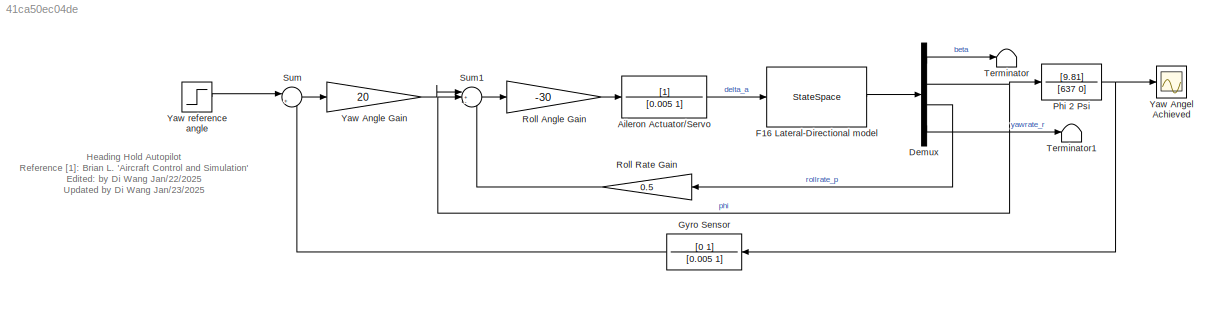
MODEL slx_41ca50ec04de
KIND model
CONFIG AbsTol = auto
CONFIG EnableMultiTasking = off
CONFIG FixedStep = auto
CONFIG MaxStep = auto
CONFIG MinStep = auto
CONFIG RelTol = 1e-3
CONFIG SampleTimeConstraint = Unconstrained
CONFIG Solver = VariableStepAuto
CONFIG SolverName = VariableStepAuto
CONFIG StartTime = 0.0
CONFIG StopTime = 30
BLOCK [TransferFcn] Aileron Actuator//Servo
  Denominator = [0.005 1]
BLOCK [Demux] Demux
  DisplayOption = bar
  Ports = [1, 4]
BLOCK [StateSpace] F16 Lateral-Directional model
  A = [-0.1315 0.14858 0.32434 -0.93964;\n     0 0 1 0.33976;\n     -10.614 0 -1.1793 1.0023;\n     0.99655 0 -0.00182 -0.25855]
  B = [0.00012;\n     0;\n     -0.10316;\n     -0.00213]
  C = eye(4)
  D = zeros(4,1)
  InitialCondition = 0
  Ports = [1, 1]
BLOCK [TransferFcn] Gyro Sensor
  Denominator = [0.005 1]
  Numerator = [0 1]
BLOCK [TransferFcn] Phi 2 Psi
  Denominator = [637 0]
  Numerator = [9.81]
BLOCK [Gain] Roll Angle Gain
  Gain = -30
  OutDataTypeStr = Inherit: Inherit via internal rule
  ParamDataTypeStr = Inherit: Inherit via internal rule
  SaturateOnIntegerOverflow = off
BLOCK [Gain] Roll Rate Gain
  Gain = 0.5
  OutDataTypeStr = Inherit: Inherit via internal rule
  ParamDataTypeStr = Inherit: Inherit via internal rule
  SaturateOnIntegerOverflow = off
BLOCK [Sum] Sum
  IconShape = round
  InputSameDT = off
  Inputs = |+-
  OutDataTypeStr = Inherit: Inherit via internal rule
  Ports = [2, 1]
  SaturateOnIntegerOverflow = off
BLOCK [Sum] Sum1
  IconShape = round
  InputSameDT = off
  Inputs = |+--
  OutDataTypeStr = Inherit: Inherit via internal rule
  Ports = [3, 1]
  SaturateOnIntegerOverflow = off
BLOCK [Terminator] Terminator
BLOCK [Terminator] Terminator1
BLOCK [Scope] Yaw Angel Achieved
  Floating = off
  NumInputPorts = 1
  Ports = [1]
  ScopeSpecificationString = Simulink.scopes.TimeScopeBlockCfg('CurrentConfiguration', extmgr.ConfigurationSet(extmgr.Configuration('Core','General UI',true),extmgr.Configuration('Core','Source UI',true),extmgr.Configuration('Sources','WiredSimulink',true),extmgr.Configuration('Visuals','Time Domain',true,'SerializedDisplays',{struct('MinYLimReal','-0.13003','MaxYLimReal','1.17031','YLabelReal','','MinYLimMag','0.00000','MaxY...<+1398ch>
BLOCK [Gain] Yaw Angle Gain
  Gain = 20
  OutDataTypeStr = Inherit: Inherit via internal rule
  ParamDataTypeStr = Inherit: Inherit via internal rule
  SaturateOnIntegerOverflow = off
BLOCK [Step] Yaw reference angle
  SampleTime = 0
ANNOTATION (root): Heading Hold Autopilot Reference [1]: Brian L. 'Aircraft Control and Simulation' Edited: by Di Wang Jan/22/2025 Updated by Di Wang Jan/23/2025
LINE Aileron Actuator//Servo:1 -> F16 Lateral-Directional model:1
LINE Demux:1 -> Terminator:1
NET Demux:2 -> Phi 2 Psi:1, Sum1:2
LINE Demux:3 -> Roll Rate Gain:1
LINE Demux:4 -> Terminator1:1
LINE F16 Lateral-Directional model:1 -> Demux:1
LINE Gyro Sensor:1 -> Sum:2
NET Phi 2 Psi:1 -> Gyro Sensor:1, Yaw Angel Achieved:1
LINE Roll Angle Gain:1 -> Aileron Actuator//Servo:1
LINE Roll Rate Gain:1 -> Sum1:3
LINE Sum1:1 -> Roll Angle Gain:1
LINE Sum:1 -> Yaw Angle Gain:1
LINE Yaw Angle Gain:1 -> Sum1:1
LINE Yaw reference angle:1 -> Sum:1
note: NET lines group one-source signal fan-out (src -> all destinations, sorted); 1:1 wires keep LINE
